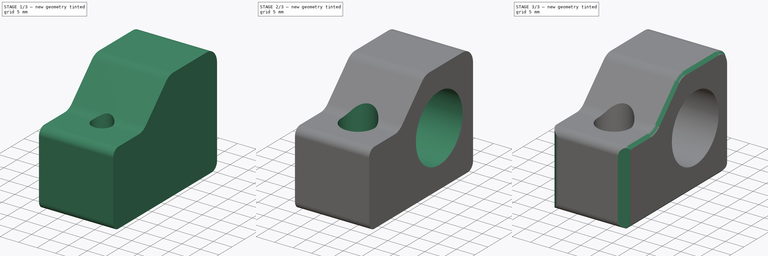
[diagram: build sequence overview — one tinted view per stage of 3, left to right]
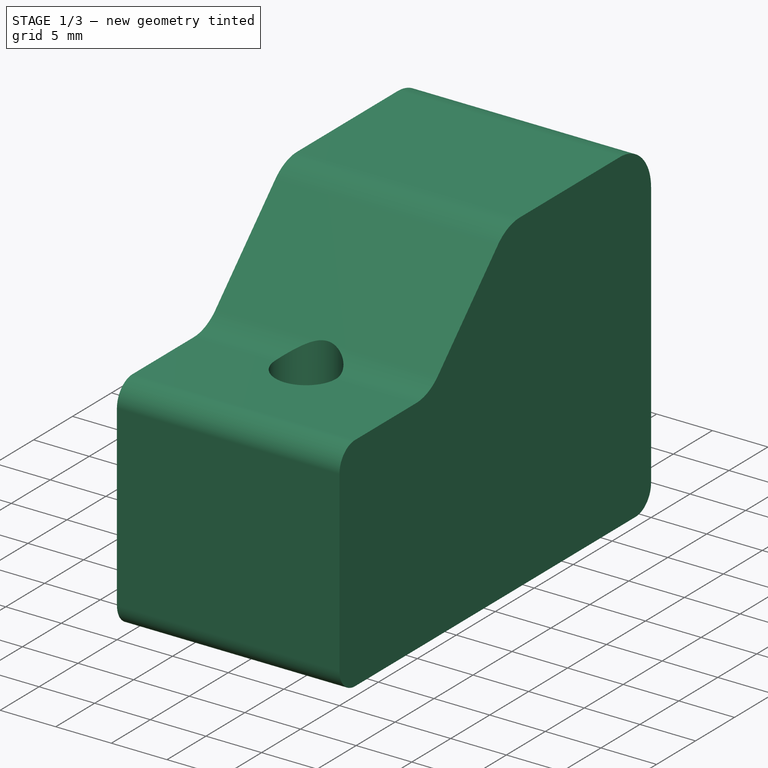
[diagram: stage 1 of 3 — iso view after this stage's code; geometry added in this stage tinted green]
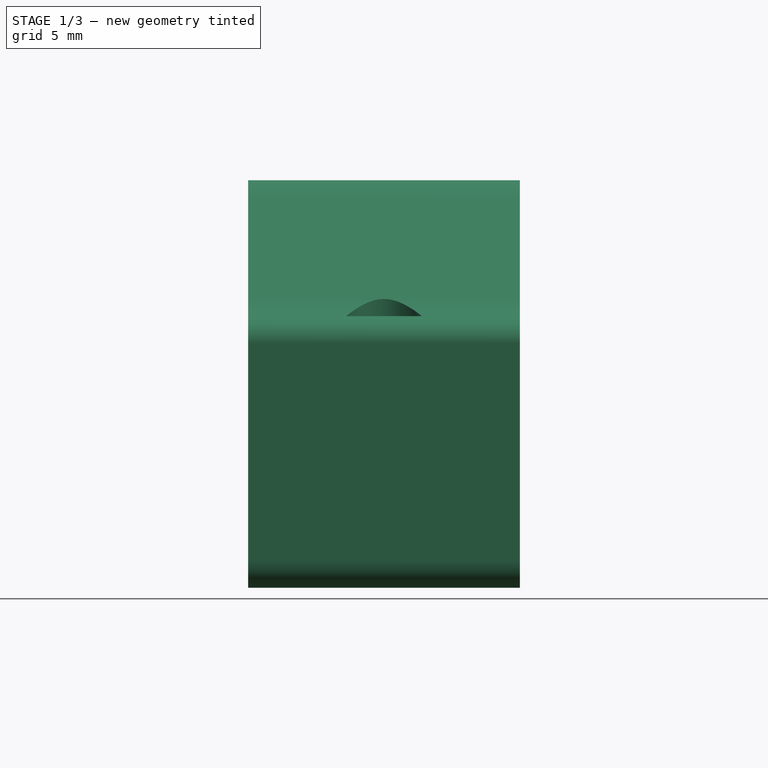
[diagram: stage 1 of 3 — front view after this stage's code; geometry added in this stage tinted green]
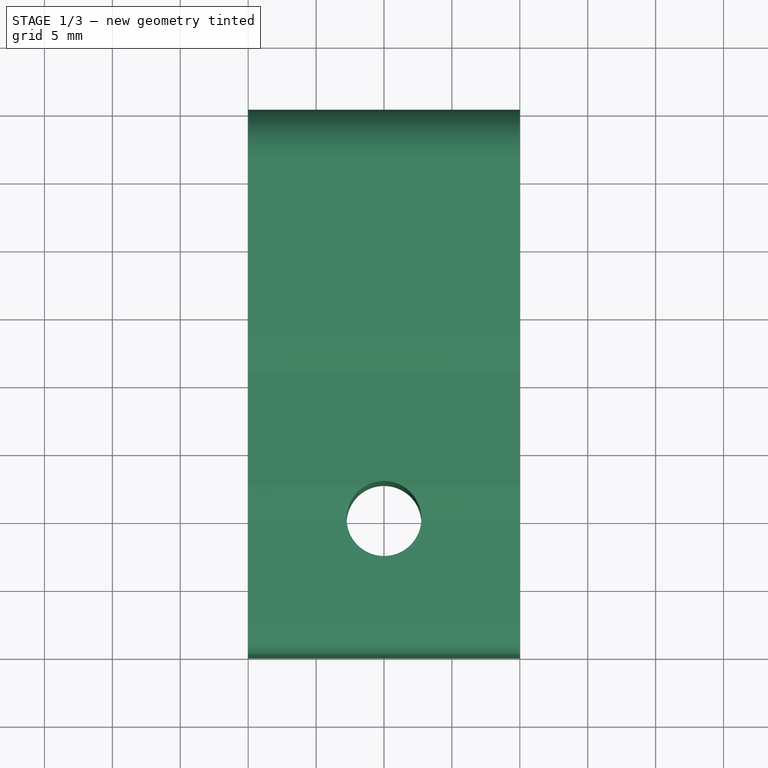
[diagram: stage 1 of 3 — top view after this stage's code; geometry added in this stage tinted green]
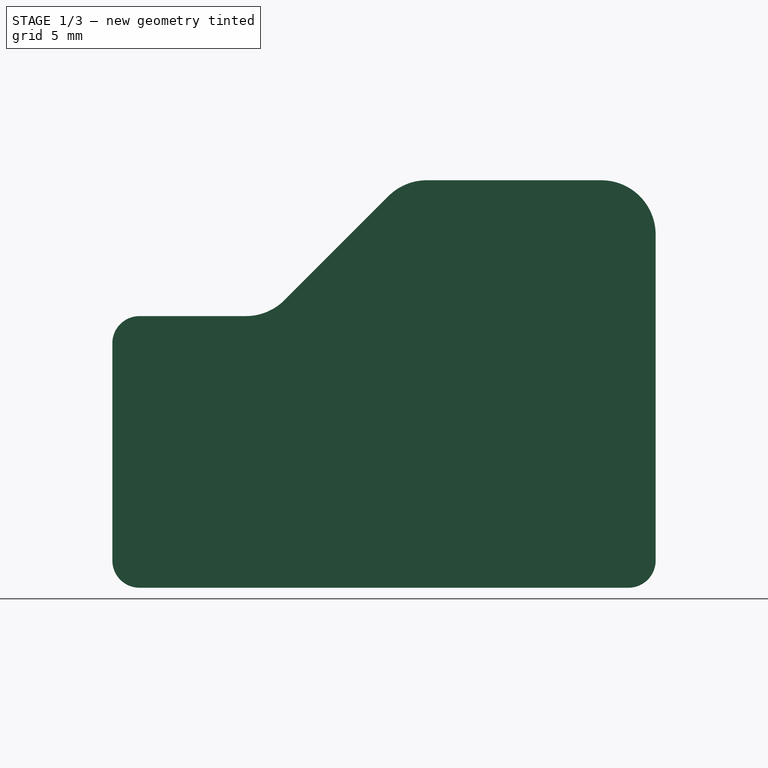
[diagram: stage 1 of 3 — right view after this stage's code; geometry added in this stage tinted green]
FCSTD DOCUMENT  (FreeCAD 1.0R39109 (Git))
Label: back-bearing-block-left
License: All rights reserved
LicenseURL: http://en.wikipedia.org/wiki/All_rights_reserved
objects: Sketcher::SketchObject×6, PartDesign::Pocket×5, App::Link×2, PartDesign::Pad×1, PartDesign::Chamfer×1, PartDesign::Body×1, App::Part×1
note: 34 computed .brp shape members not serialized (recipe doc carries the construction recipe); baked Part::Feature solids carry a one-line shape summary decoded from their .brp
EXTERNAL_REF file=../standard-stuff.FCStd obj=Body
EXTERNAL_REF file=../standard-stuff.FCStd obj=Group001

FEATURE [Sketcher::SketchObject] Sketch180
  ArcFitTolerance = 0
  AttachmentSupport = -> [XY_Plane246]
  FullyConstrained = true
  MakeInternals = false
  MapMode = 5
  sketch-geometry (1):
    g0: Circle CenterX=0 CenterY=-10 CenterZ=0 NormalX=0 NormalY=0 NormalZ=1 AngleXU=0 Radius=2.75
  constraints (3):
    c: PointOnObject(g0,g-2)
    c: DistanceY(g0) = -10
    c: Diameter(g0) = 5.5
FEATURE [Sketcher::SketchObject] Sketch181
  ArcFitTolerance = 0
  AttachmentOffset = pos=(0,0,6) rot=(0,0,1;0rad)
  AttachmentSupport = -> [XY_Plane246]
  FullyConstrained = true
  MakeInternals = false
  MapMode = 5
  Placement = pos=(0,0,6) rot=(0,0,1;0rad)
  sketch-geometry (1):
    g0: Circle CenterX=0 CenterY=-10 CenterZ=0 NormalX=0 NormalY=0 NormalZ=1 AngleXU=0 Radius=4.5
  constraints (3):
    c: PointOnObject(g0,g-2)
    c: Diameter(g0) = 9
    c: DistanceY(g0) = -10
FEATURE [Sketcher::SketchObject] Sketch182
  ArcFitTolerance = 0
  AttachmentSupport = -> [YZ_Plane246]
  FullyConstrained = true
  MakeInternals = false
  MapMode = 5
  Placement = pos=(0,0,0) rot=(0.57735,0.57735,0.57735;2.0944rad)
  sketch-geometry (20):
    g0: LineSegment StartX=18 StartY=0 StartZ=0 EndX=-18 EndY=0 EndZ=0
    g1: LineSegment StartX=-20 StartY=2 StartZ=0 EndX=-20 EndY=18 EndZ=0
    g2: LineSegment StartX=20 StartY=26 StartZ=0 EndX=20 EndY=2 EndZ=0
    g3: GeomPoint [constr] X=20 Y=28 Z=0
    g4: GeomPoint [constr] X=7 Y=15 Z=0
    g5: LineSegment StartX=0.32233 StartY=28.8284 StartZ=0 EndX=-7.33452 EndY=21.1716 EndZ=0
    g6: ArcOfCircle CenterX=-10.163 CenterY=24 CenterZ=0 NormalX=0 NormalY=0 NormalZ=1 AngleXU=0 Radius=4 StartAngle=4.71239 EndAngle=5.49779
    g7: LineSegment StartX=-18 StartY=20 StartZ=0 EndX=-10.163 EndY=20 EndZ=0
    g8: ArcOfCircle CenterX=3.15076 CenterY=26 CenterZ=0 NormalX=0 NormalY=0 NormalZ=1 AngleXU=0 Radius=4 StartAngle=1.5708 EndAngle=2.35619
    g9: ArcOfCircle CenterX=16 CenterY=26 CenterZ=0 NormalX=0 NormalY=0 NormalZ=1 AngleXU=0 Radius=4 StartAngle=1e-16 EndAngle=1.5708
    g10: LineSegment StartX=16 StartY=30 StartZ=0 EndX=3.15076 EndY=30 EndZ=0
    g11: Circle [constr] CenterX=7 CenterY=15 CenterZ=0 NormalX=0 NormalY=0 NormalZ=1 AngleXU=0 Radius=12.5
    g12: LineSegment [constr] StartX=-3.25305 StartY=25.253 StartZ=0 EndX=7 EndY=15 EndZ=0
    g13: GeomPoint [constr] X=-1.83883 Y=23.8388 Z=0
    g14: ArcOfCircle CenterX=-18 CenterY=18 CenterZ=0 NormalX=0 NormalY=0 NormalZ=1 AngleXU=0 Radius=2 StartAngle=1.5708 EndAngle=3.14159
    g15: GeomPoint [constr] X=-20 Y=20 Z=0
    g16: ArcOfCircle CenterX=-18 CenterY=2 CenterZ=0 NormalX=0 NormalY=0 NormalZ=1 AngleXU=0 Radius=2 StartAngle=3.14159 EndAngle=4.71239
    g17: GeomPoint [constr] X=-20 Y=0 Z=0
    g18: ArcOfCircle CenterX=18 CenterY=2 CenterZ=0 NormalX=0 NormalY=0 NormalZ=1 AngleXU=0 Radius=2 StartAngle=4.71239 EndAngle=6.28319
    g19: GeomPoint [constr] X=20 Y=0 Z=0
  constraints (46):
    c: Horizontal(g0)
    c: Vertical(g1)
    c: Vertical(g2)
    c: Symmetric(g19,g17,g-1)
    c: DistanceX(g19) = 20
    c: PointOnObject(g3,g2)
    c: DistanceX(g-1,g4) = 7
    c: DistanceY(g4) = 15
    c: DistanceY(g4,g3) = 13
    c: Tangent(g7,g6) = -1.5708
    c: Tangent(g6,g5) = 1.5708
    c: Horizontal(g7)
    c: Radius(g6) = 4
    c: Angle(g5) = -2.35619
    c: DistanceY(g15) = 20
    c: Tangent(g2,g9) = 1.5708
    c: Radius(g9) = 4
    c: Horizontal(g10)
    c: Tangent(g8,g10) = -1.5708
    c: Tangent(g10,g9) = -1.5708
    c: Tangent(g8,g5) = -1.5708
    c: Equal(g8,g9)
    c: DistanceY(g8) = 30
    c: Coincident(g11,g4)
    c: Diameter(g11) = 25
    c: PointOnObject(g12,g5)
    c: Coincident(g12,g4)
    c: PointOnObject(g13,g12)
    c: PointOnObject(g13,g11)
    c: Distance(g13,g12) = 2
    c: Perpendicular(g5,g12)
    c: PointOnObject(g15,g1)
    c: PointOnObject(g15,g7)
    c: Tangent(g1,g14) = 1.5708
    c: Tangent(g7,g14) = 1.5708
    c: PointOnObject(g17,g0)
    c: PointOnObject(g17,g1)
    c: Tangent(g0,g16) = 1.5708
    c: Tangent(g1,g16) = 1.5708
    c: PointOnObject(g19,g0)
    c: PointOnObject(g19,g2)
    c: Tangent(g0,g18) = 1.5708
    c: Tangent(g2,g18) = 1.5708
    c: Equal(g18,g16)
    c: Equal(g18,g14)
    c: Radius(g18) = 2
FEATURE [PartDesign::Pad] Pad050
  Direction = (1,0,0)
  Length = 20
  Length2 = 10
  Midplane = true
  Placement = pos=(0,0,0) rot=(1,1,1;2.0944rad)
  Profile = -> Sketch182
  ReferenceAxis = -> Sketch182 [N_Axis]
  Suppressed = false
  Type = 0
FEATURE [PartDesign::Pocket] Pocket106
  BaseFeature = -> Pad050
  Direction = (0,0,-1)
  Length = 5
  Length2 = 5
  Midplane = true
  Placement = pos=(0,0,0) rot=(1,1,1;2.0944rad)
  Profile = -> Sketch180
  ReferenceAxis = -> Sketch180 [N_Axis]
  Suppressed = false
  Type = 1
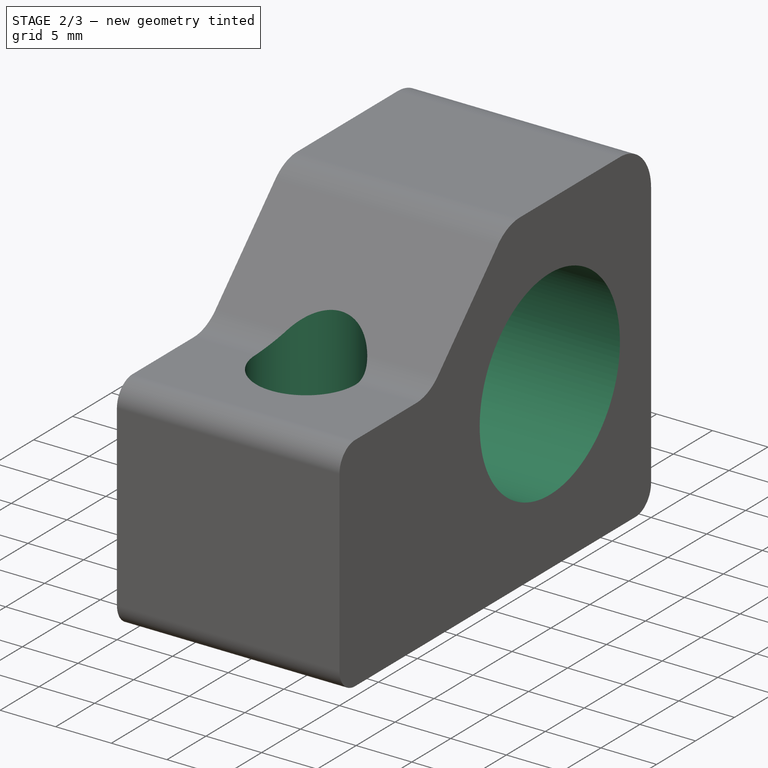
[diagram: stage 2 of 3 — iso view after this stage's code; geometry added in this stage tinted green]
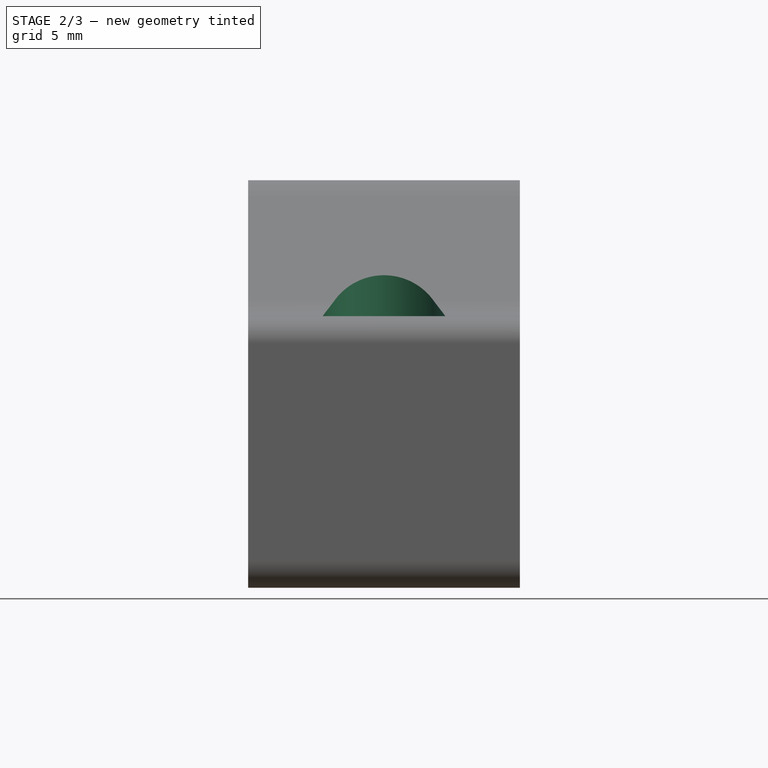
[diagram: stage 2 of 3 — front view after this stage's code; geometry added in this stage tinted green]
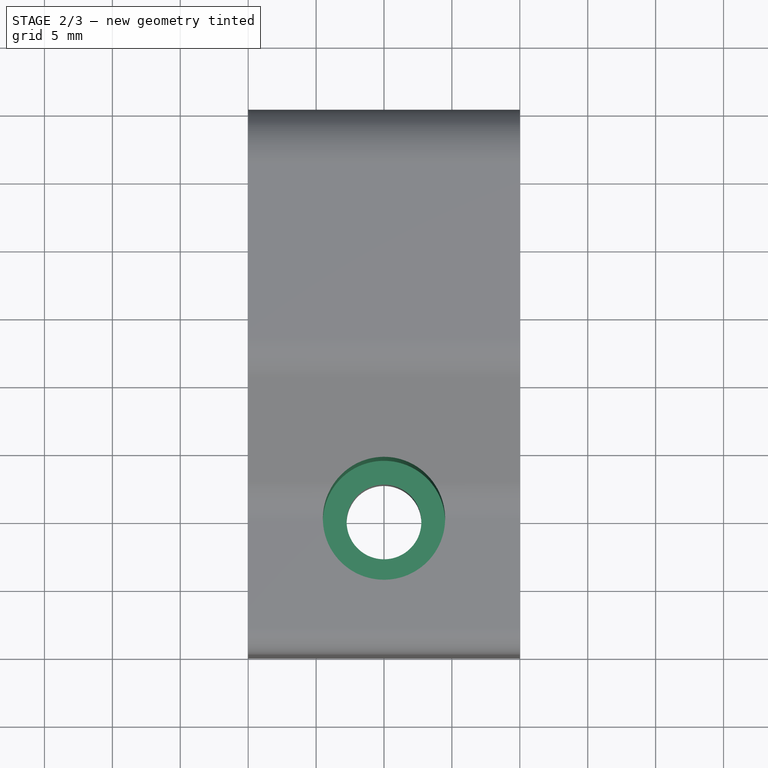
[diagram: stage 2 of 3 — top view after this stage's code; geometry added in this stage tinted green]
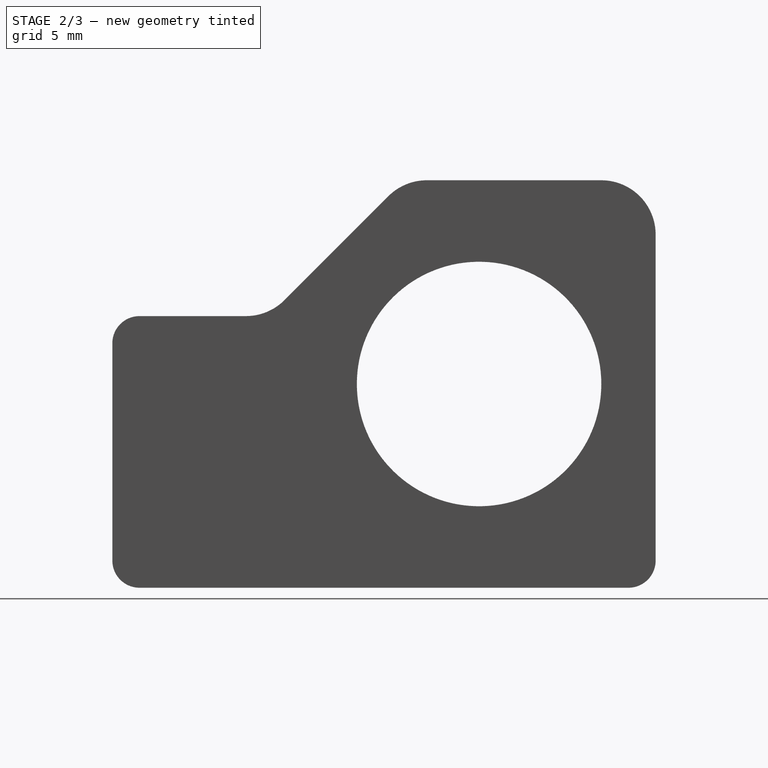
[diagram: stage 2 of 3 — right view after this stage's code; geometry added in this stage tinted green]
FEATURE [PartDesign::Pocket] Pocket107
  BaseFeature = -> Pocket106
  Direction = (0,0,-1)
  Length = 5
  Length2 = 5
  Placement = pos=(0,0,0) rot=(1,1,1;2.0944rad)
  Profile = -> Sketch181
  ReferenceAxis = -> Sketch181 [N_Axis]
  Reversed = true
  Suppressed = false
  Type = 1
FEATURE [Sketcher::SketchObject] Sketch183
  ArcFitTolerance = 0
  AttachmentOffset = pos=(0,0,-1) rot=(0,0,1;0rad)
  AttachmentSupport = -> [YZ_Plane246]
  FullyConstrained = true
  MakeInternals = false
  MapMode = 5
  Placement = pos=(-1,0,0) rot=(0.57735,0.57735,0.57735;2.0944rad)
  sketch-geometry (1):
    g0: Circle CenterX=7 CenterY=15 CenterZ=0 NormalX=0 NormalY=0 NormalZ=1 AngleXU=0 Radius=11.1
  constraints (3):
    c: Diameter(g0) = 22.2
    c: DistanceY(g0) = 15
    c: DistanceX(g0) = 7
FEATURE [PartDesign::Pocket] Pocket108
  BaseFeature = -> Pocket107
  Direction = (-1,0,0)
  Length = 5
  Length2 = 5
  Placement = pos=(0,0,0) rot=(1,1,1;2.0944rad)
  Profile = -> Sketch183
  ReferenceAxis = -> Sketch183 [N_Axis]
  Suppressed = false
  Type = 1
FEATURE [Sketcher::SketchObject] Sketch184
  ArcFitTolerance = 0
  AttachmentSupport = -> [YZ_Plane246]
  FullyConstrained = true
  MakeInternals = false
  MapMode = 5
  Placement = pos=(0,0,0) rot=(0.57735,0.57735,0.57735;2.0944rad)
  sketch-geometry (1):
    g0: Circle CenterX=7 CenterY=15 CenterZ=0 NormalX=0 NormalY=0 NormalZ=1 AngleXU=0 Radius=9
  constraints (3):
    c: DistanceX(g0) = 7
    c: DistanceY(g0) = 15
    c: Diameter(g0) = 18
FEATURE [PartDesign::Pocket] Pocket109
  BaseFeature = -> Pocket108
  Direction = (-1,0,0)
  Length = 5
  Length2 = 5
  Midplane = true
  Placement = pos=(0,0,0) rot=(1,1,1;2.0944rad)
  Profile = -> Sketch184
  ReferenceAxis = -> Sketch184 [N_Axis]
  Suppressed = false
  Type = 1
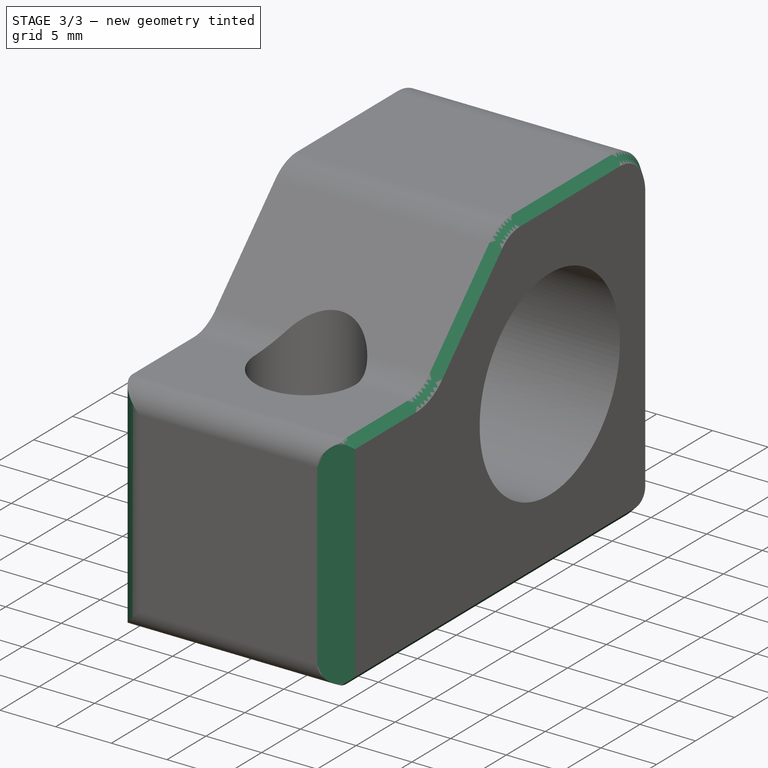
[diagram: stage 3 of 3 — iso view after this stage's code; geometry added in this stage tinted green]
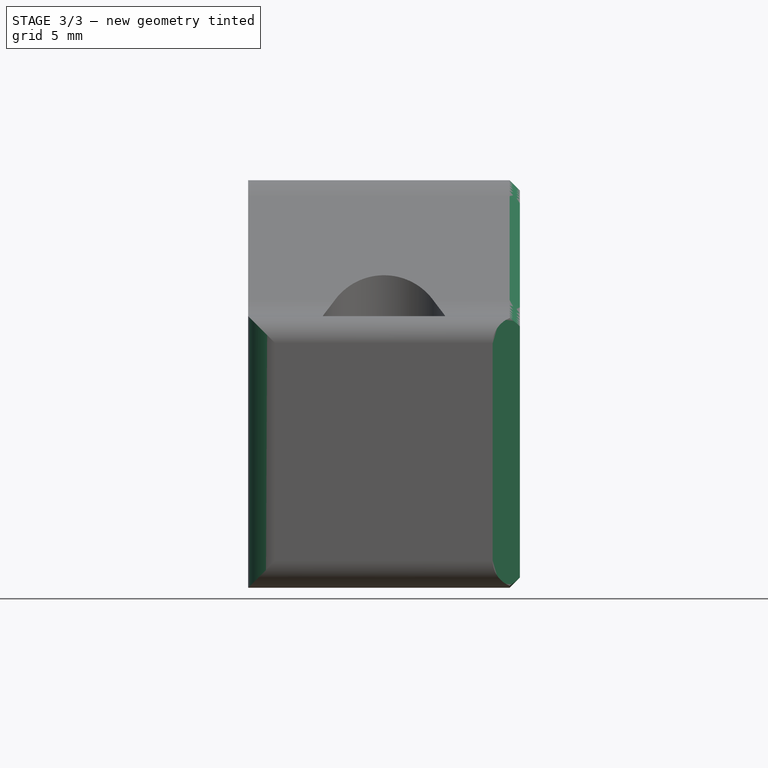
[diagram: stage 3 of 3 — front view after this stage's code; geometry added in this stage tinted green]
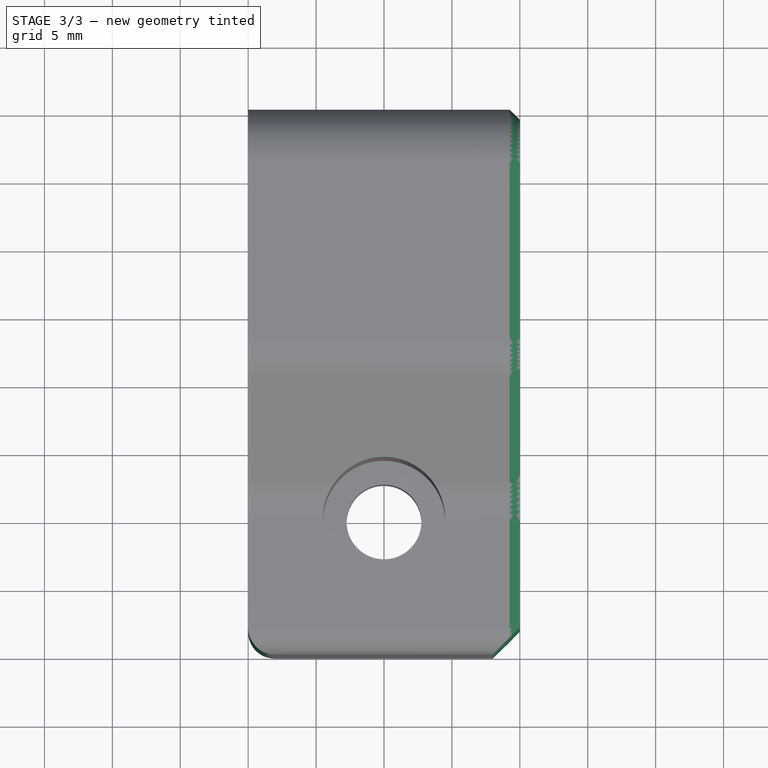
[diagram: stage 3 of 3 — top view after this stage's code; geometry added in this stage tinted green]
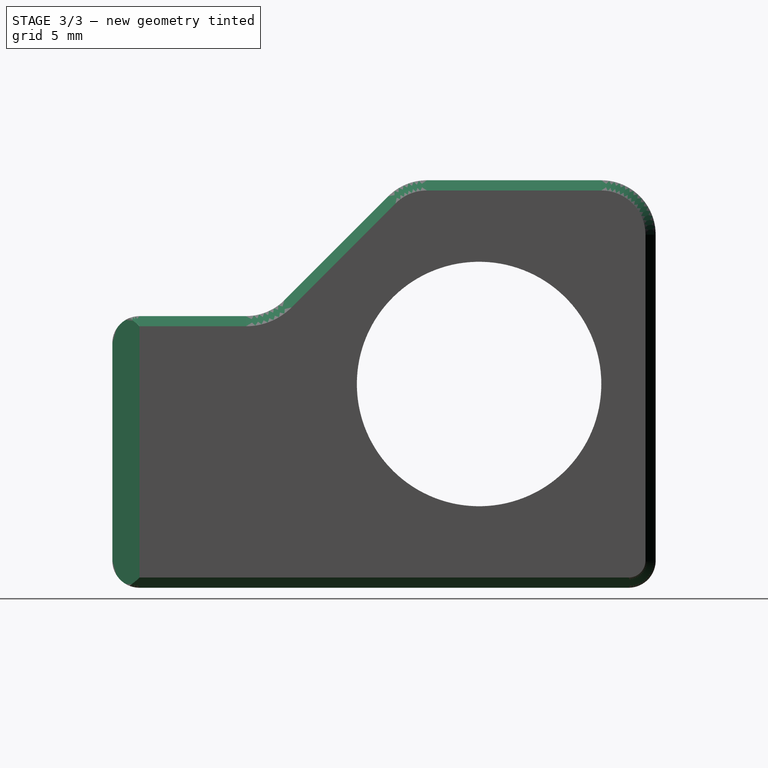
[diagram: stage 3 of 3 — right view after this stage's code; geometry added in this stage tinted green]
FEATURE [PartDesign::Chamfer] Chamfer015
  Angle = 45
  Base = -> Pocket109 [Edge22]
  BaseFeature = -> Pocket109
  ChamferType = 0
  FlipDirection = false
  Placement = pos=(0,0,0) rot=(1,1,1;2.0944rad)
  Size = 0.75
  Size2 = 1
  SupportTransform = false
  Suppressed = false
  UseAllEdges = false
FEATURE [Sketcher::SketchObject] Sketch362
  ArcFitTolerance = 0
  AttachmentSupport = -> [XY_Plane246]
  FullyConstrained = true
  MakeInternals = false
  MapMode = 5
  sketch-geometry (7):
    g0: GeomPoint [constr] X=10 Y=-20 Z=0
    g1: LineSegment StartX=10 StartY=-18 StartZ=0 EndX=10 EndY=-20 EndZ=0
    g2: LineSegment StartX=10 StartY=-20 StartZ=0 EndX=8 EndY=-20 EndZ=0
    g3: LineSegment StartX=8 StartY=-20 StartZ=0 EndX=10 EndY=-18 EndZ=0
    g4: ArcOfCircle CenterX=-8 CenterY=-18 CenterZ=0 NormalX=0 NormalY=0 NormalZ=1 AngleXU=0 Radius=2 StartAngle=3.14159 EndAngle=4.71239
    g5: LineSegment StartX=-8 StartY=-20 StartZ=0 EndX=-10 EndY=-20 EndZ=0
    g6: LineSegment StartX=-10 StartY=-20 StartZ=0 EndX=-10 EndY=-18 EndZ=0
  constraints (17):
    c: DistanceX(g0) = 10
    c: DistanceY(g0) = -20
    c: Coincident(g1,g0)
    c: Vertical(g1)
    c: Coincident(g1,g2)
    c: Horizontal(g2)
    c: Coincident(g2,g3)
    c: Coincident(g3,g1)
    c: Equal(g1,g2)
    c: DistanceY(g1,g1) = 2
    c: Coincident(g5,g6)
    c: Vertical(g6)
    c: Horizontal(g5)
    c: Tangent(g4,g5) = 1.5708
    c: Tangent(g6,g4) = 1.5708
    c: Symmetric(g1,g5,g-2)
    c: Equal(g5,g2)
FEATURE [PartDesign::Pocket] Pocket228
  BaseFeature = -> Chamfer015
  Direction = (0,0,-1)
  Length = 5
  Length2 = 5
  Midplane = true
  Placement = pos=(0,0,0) rot=(1,1,1;2.0944rad)
  Profile = -> Sketch362
  ReferenceAxis = -> Sketch362 [N_Axis]
  Suppressed = false
  Type = 1
FEATURE [PartDesign::Body] Body113  label="z-motion-back-bearing-block-left"
  AllowCompound = false
  Group = -> [Sketch180,Sketch181,Sketch182,Pad050,Pocket106,Pocket107,Sketch183,Pocket108,Sketch184,Pocket109,Sketch362,Chamfer015,Pocket228]
  Origin = -> Origin247
  Tip = -> Pocket228
FEATURE [App::Link] Link  label="bearing"
  LinkPlacement = pos=(-5,7,15) rot=(0,1,0;1.5708rad)
  LinkedObject = -> <external ../standard-stuff.FCStd>#Body
  Placement = pos=(-5,7,15) rot=(0,1,0;1.5708rad)
FEATURE [App::Link] Link001  label="pulley"
  LinkPlacement = pos=(-20,7,15) rot=(0,1,0;1.5708rad)
  LinkedObject = -> <external ../standard-stuff.FCStd>#Group001 [Body071.]
  Placement = pos=(-20,7,15) rot=(0,1,0;1.5708rad)
FEATURE [App::Part] Part  label="main"
  Group = -> [Body113,Link,Link001]
  Origin = -> Origin
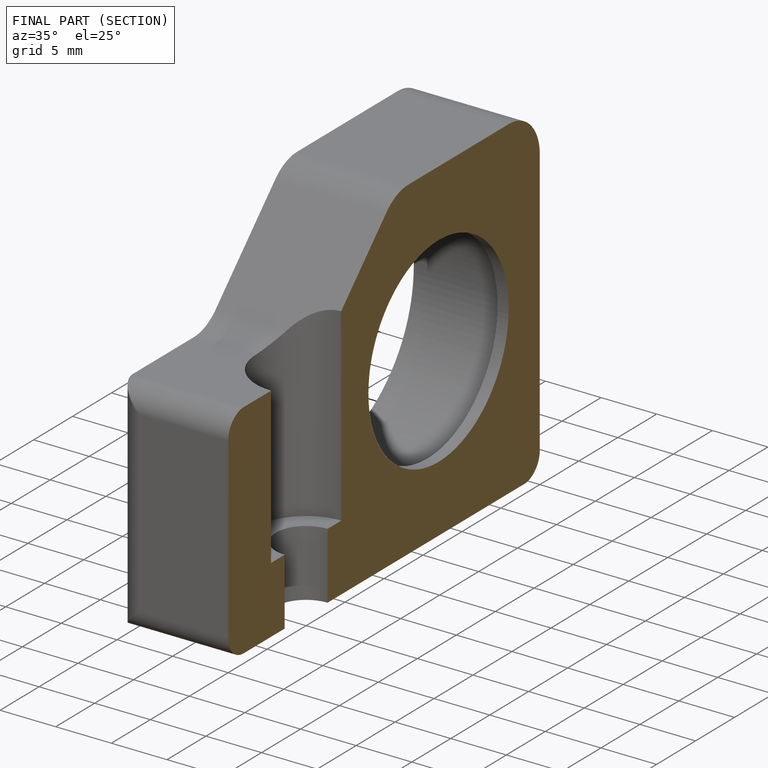
[diagram: finished part — half-section view (interior)]
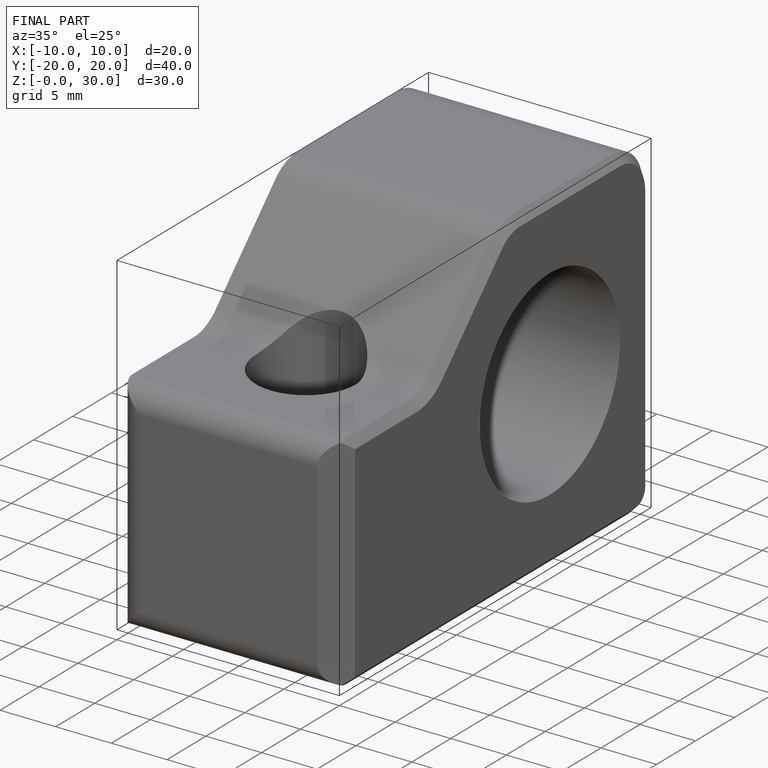
[diagram: finished part — iso view with bounding-box wireframe]
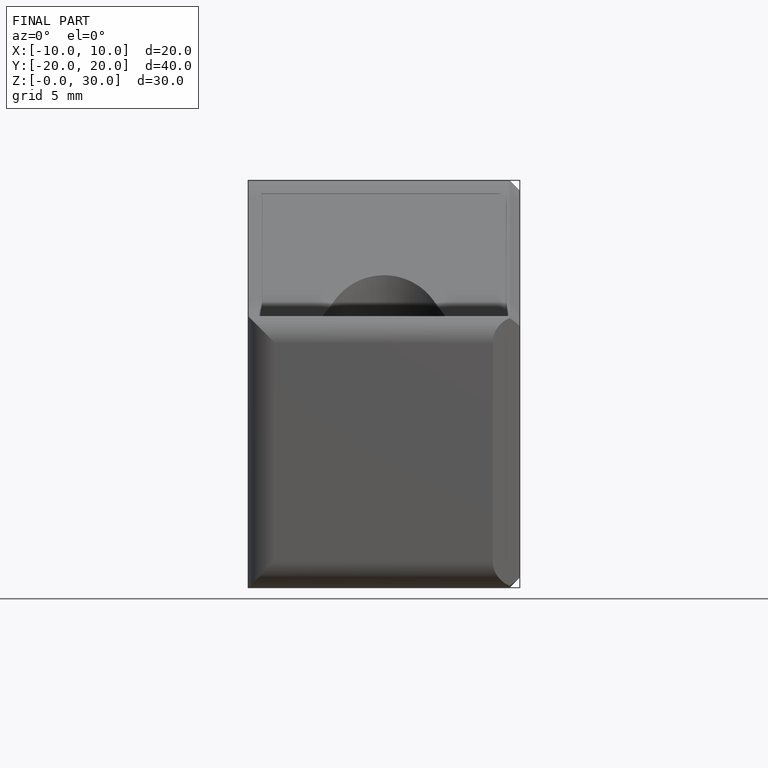
[diagram: finished part — front view with bounding-box wireframe]
